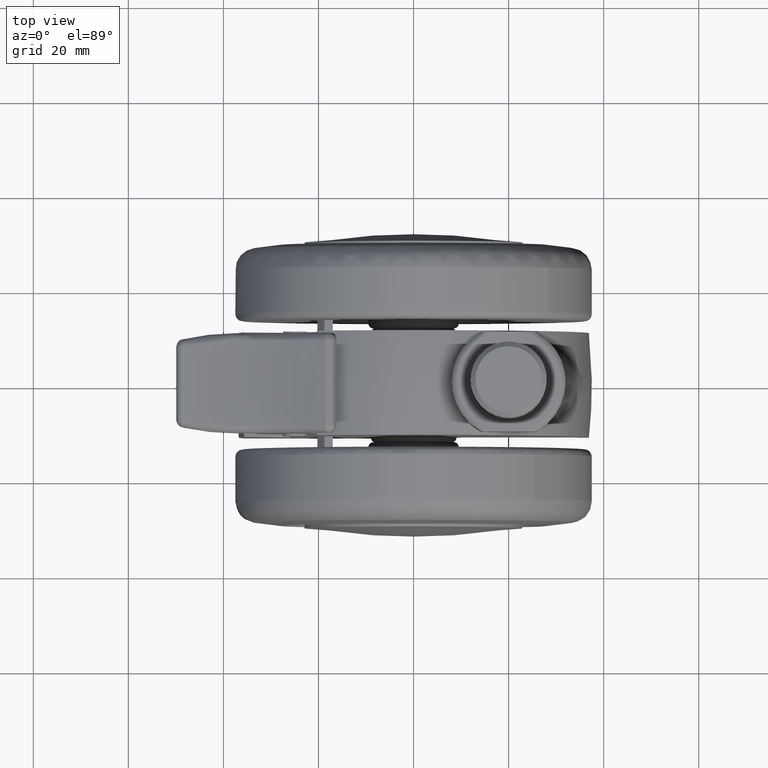
[diagram: clean part render]
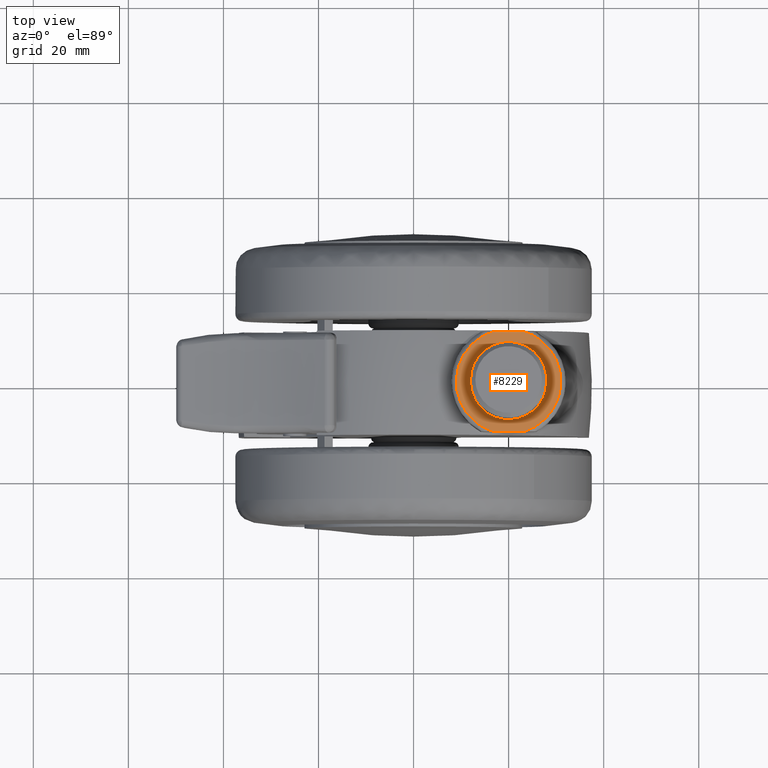
[diagram: same view with one face highlighted and labeled with its STEP entity id]
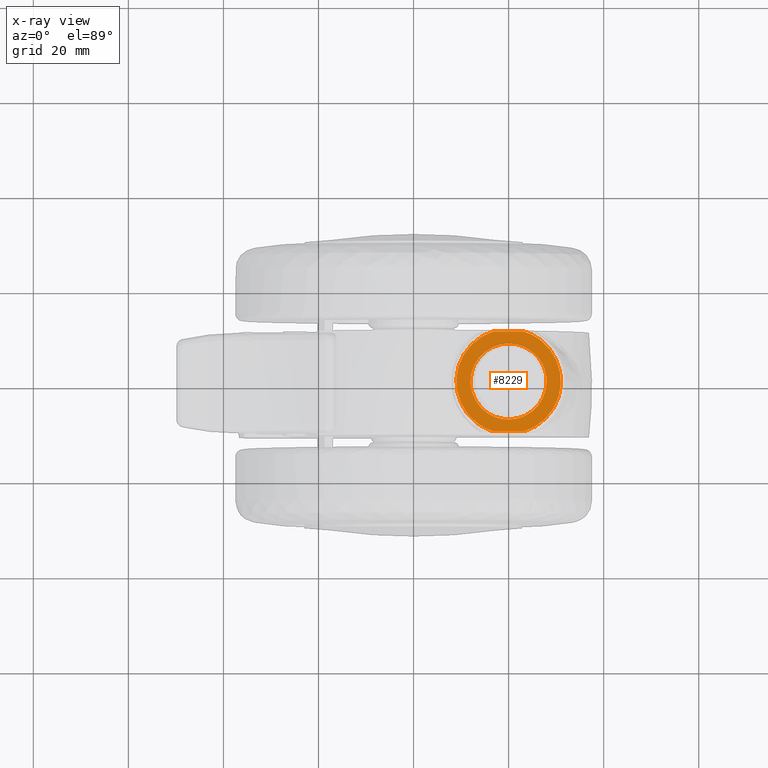
[diagram: x-ray of the same camera — body ghosted, the highlighted face saturated]
A machine part, top view. The second image highlights one B-rep face of the part: STEP entity #8229.
The next image is the same camera in x-ray: the body ghosted, the highlighted face saturated — about 4% of this face is hidden behind the body in this view.
In plain terms, the highlighted face is a freeform B-spline surface patch.
Its self-contained STEP definition (entity closure, byte-faithful):
#6918=CARTESIAN_POINT('',(20.488388316462188,-7.985078387363721,47.0));
#6919=VERTEX_POINT('',#6918);
#6925=CARTESIAN_POINT('',(28.0,0.0,47.0));
#6926=VERTEX_POINT('',#6925);
#6927=CARTESIAN_POINT('',(28.0,0.0,47.0));
#6928=CARTESIAN_POINT('',(27.999999999999996,-7.525648534899318,47.000000000000014));
#6929=CARTESIAN_POINT('',(20.488388316462185,-7.985078387363721,47.000000000000007));
#6937=(BOUNDED_CURVE()B_SPLINE_CURVE(2,(#6927,#6928,#6929),.UNSPECIFIED.,.F.,.U.)B_SPLINE_CURVE_WITH_KNOTS((3,3),(0.500000000000000,0.739332962234045),.UNSPECIFIED.)CURVE()GEOMETRIC_REPRESENTATION_ITEM()RATIONAL_B_SPLINE_CURVE((1.0,0.719603993292449,0.976072041656220))REPRESENTATION_ITEM(''));
#6938=EDGE_CURVE('',#6926,#6919,#6937,.T.);
#6940=CARTESIAN_POINT('',(27.489148630194322,2.812943795182987,47.0));
#6941=VERTEX_POINT('',#6940);
#6942=CARTESIAN_POINT('',(27.489148630194325,2.812943795182987,47.0));
#6943=CARTESIAN_POINT('',(27.999999999999996,1.452859088589710,46.999999999999993));
#6944=CARTESIAN_POINT('',(28.0,0.0,47.0));
#6952=(BOUNDED_CURVE()B_SPLINE_CURVE(2,(#6942,#6943,#6944),.UNSPECIFIED.,.F.,.U.)B_SPLINE_CURVE_WITH_KNOTS((3,3),(0.440284170896783,0.500000000000000),.UNSPECIFIED.)CURVE()GEOMETRIC_REPRESENTATION_ITEM()RATIONAL_B_SPLINE_CURVE((0.893499554633164,0.930038554399379,1.0))REPRESENTATION_ITEM(''));
#6953=EDGE_CURVE('',#6941,#6926,#6952,.T.);
#7003=CARTESIAN_POINT('',(12.0,0.0,47.0));
#7004=VERTEX_POINT('',#7003);
#7005=CARTESIAN_POINT('',(12.0,0.0,47.0));
#7006=CARTESIAN_POINT('',(12.0,8.0,47.000000000000007));
#7007=CARTESIAN_POINT('',(20.0,8.0,47.0));
#7008=CARTESIAN_POINT('',(25.540876765475680,8.0,47.000000000000007));
#7009=CARTESIAN_POINT('',(27.489148630194325,2.812943795182987,47.0));
#7017=(BOUNDED_CURVE()B_SPLINE_CURVE(2,(#7005,#7006,#7007,#7008,#7009),.UNSPECIFIED.,.F.,.U.)B_SPLINE_CURVE_WITH_KNOTS((3,2,3),(0.0,0.250000000000000,0.440284170896783),.UNSPECIFIED.)CURVE()GEOMETRIC_REPRESENTATION_ITEM()RATIONAL_B_SPLINE_CURVE((1.0,0.707106781186548,1.0,0.777068226787168,0.893499554633164))REPRESENTATION_ITEM(''));
#7018=EDGE_CURVE('',#7004,#6941,#7017,.T.);
#7020=CARTESIAN_POINT('',(20.488388316462188,-7.985078387363721,47.0));
#7021=CARTESIAN_POINT('',(20.244422106572554,-8.0,47.0));
#7022=CARTESIAN_POINT('',(20.0,-8.0,47.0));
#7023=CARTESIAN_POINT('',(12.0,-8.0,47.000000000000007));
#7024=CARTESIAN_POINT('',(12.0,0.0,47.0));
#7032=(BOUNDED_CURVE()B_SPLINE_CURVE(2,(#7020,#7021,#7022,#7023,#7024),.UNSPECIFIED.,.F.,.U.)B_SPLINE_CURVE_WITH_KNOTS((3,2,3),(0.739332962234045,0.750000000000000,1.0),.UNSPECIFIED.)CURVE()GEOMETRIC_REPRESENTATION_ITEM()RATIONAL_B_SPLINE_CURVE((0.976072041656221,0.987502787894099,1.0,0.707106781186548,1.0))REPRESENTATION_ITEM(''));
#7033=EDGE_CURVE('',#6919,#7004,#7032,.T.);
#7613=CARTESIAN_POINT('',(23.278719262150901,-10.499999999879201,47.0));
#7614=VERTEX_POINT('',#7613);
#7661=CARTESIAN_POINT('',(23.278719262150901,10.500000000120799,47.0));
#7662=VERTEX_POINT('',#7661);
#7692=CARTESIAN_POINT('',(23.278719262150911,-10.499999999879240,47.0));
#7693=CARTESIAN_POINT('',(30.999999999999993,-8.088960772863949,47.0));
#7694=CARTESIAN_POINT('',(31.0,1.207923E-010,47.0));
#7695=CARTESIAN_POINT('',(30.999999999999993,8.088960773105534,47.0));
#7696=CARTESIAN_POINT('',(23.278719262150901,10.500000000120821,47.0));
#7704=(BOUNDED_CURVE()B_SPLINE_CURVE(2,(#7692,#7693,#7694,#7695,#7696),.UNSPECIFIED.,.F.,.U.)B_SPLINE_CURVE_WITH_KNOTS((3,2,3),(0.0,0.500000000000000,1.0),.UNSPECIFIED.)CURVE()GEOMETRIC_REPRESENTATION_ITEM()RATIONAL_B_SPLINE_CURVE((1.0,0.805625653597334,1.0,0.805625653597334,1.0))REPRESENTATION_ITEM(''));
#7705=EDGE_CURVE('',#7614,#7662,#7704,.T.);
#7857=CARTESIAN_POINT('',(16.721280737848900,10.500000000120799,47.0));
#7858=VERTEX_POINT('',#7857);
#7905=CARTESIAN_POINT('',(16.721280737848900,-10.499999999879201,47.0));
#7906=VERTEX_POINT('',#7905);
#7936=CARTESIAN_POINT('',(16.721280737848911,10.500000000120760,47.0));
#7937=CARTESIAN_POINT('',(9.000000000000002,8.088960773105384,47.0));
#7938=CARTESIAN_POINT('',(9.000000000000002,1.207923E-010,47.0));
#7939=CARTESIAN_POINT('',(9.000000000000002,-8.088960772863794,47.0));
#7940=CARTESIAN_POINT('',(16.721280737848900,-10.499999999879179,47.0));
#7948=(BOUNDED_CURVE()B_SPLINE_CURVE(2,(#7936,#7937,#7938,#7939,#7940),.UNSPECIFIED.,.F.,.U.)B_SPLINE_CURVE_WITH_KNOTS((3,2,3),(0.0,0.500000000000000,1.0),.UNSPECIFIED.)CURVE()GEOMETRIC_REPRESENTATION_ITEM()RATIONAL_B_SPLINE_CURVE((1.0,0.805625653597340,1.0,0.805625653597340,1.0))REPRESENTATION_ITEM(''));
#7949=EDGE_CURVE('',#7858,#7906,#7948,.T.);
#8111=CARTESIAN_POINT('',(16.721280737848900,-10.499999999879201,47.0));
#8112=CARTESIAN_POINT('',(23.278719262150901,-10.499999999879201,47.0));
#8113=QUASI_UNIFORM_CURVE('',1,(#8111,#8112),.UNSPECIFIED.,.F.,.U.);
#8114=EDGE_CURVE('',#7906,#7614,#8113,.T.);
#8158=CARTESIAN_POINT('',(23.278719262150901,10.500000000120799,47.0));
#8159=CARTESIAN_POINT('',(16.721280737848900,10.500000000120799,47.0));
#8160=QUASI_UNIFORM_CURVE('',1,(#8158,#8159),.UNSPECIFIED.,.F.,.U.);
#8161=EDGE_CURVE('',#7662,#7858,#8160,.T.);
#8212=CARTESIAN_POINT('',(7.901100042640330,-11.548949959177129,47.0));
#8213=CARTESIAN_POINT('',(32.098900547445652,-11.548949959177129,47.0));
#8214=CARTESIAN_POINT('',(7.901100042640330,11.548950522682620,47.0));
#8215=CARTESIAN_POINT('',(32.098900547445652,11.548950522682620,47.0));
#8216=B_SPLINE_SURFACE_WITH_KNOTS('',1,1,((#8212,#8214),(#8213,#8215)),.UNSPECIFIED.,.F.,.F.,.U.,(2,2),(2,2),(0.0,24.197800504805318),(0.0,23.097900481859750),.UNSPECIFIED.);
#8217=ORIENTED_EDGE('',*,*,#8161,.T.);
#8218=ORIENTED_EDGE('',*,*,#7949,.T.);
#8219=ORIENTED_EDGE('',*,*,#8114,.T.);
#8220=ORIENTED_EDGE('',*,*,#7705,.T.);
#8221=EDGE_LOOP('',(#8217,#8218,#8219,#8220));
#8222=FACE_OUTER_BOUND('',#8221,.T.);
#8223=ORIENTED_EDGE('',*,*,#6938,.T.);
#8224=ORIENTED_EDGE('',*,*,#7033,.T.);
#8225=ORIENTED_EDGE('',*,*,#7018,.T.);
#8226=ORIENTED_EDGE('',*,*,#6953,.T.);
#8227=EDGE_LOOP('',(#8223,#8224,#8225,#8226));
#8228=FACE_BOUND('',#8227,.T.);
#8229=ADVANCED_FACE('',(#8222,#8228),#8216,.T.);